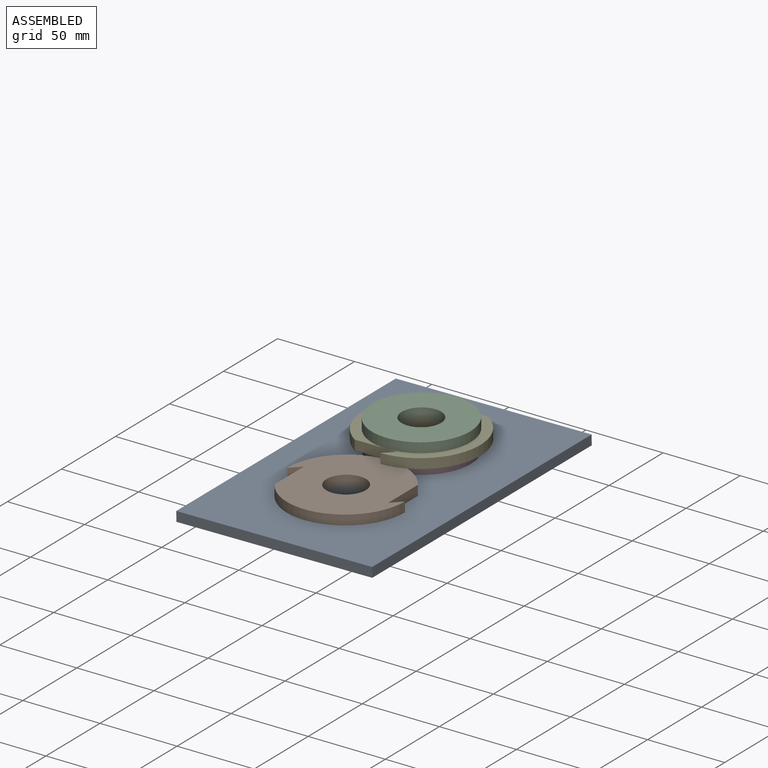
[diagram: assembled view]
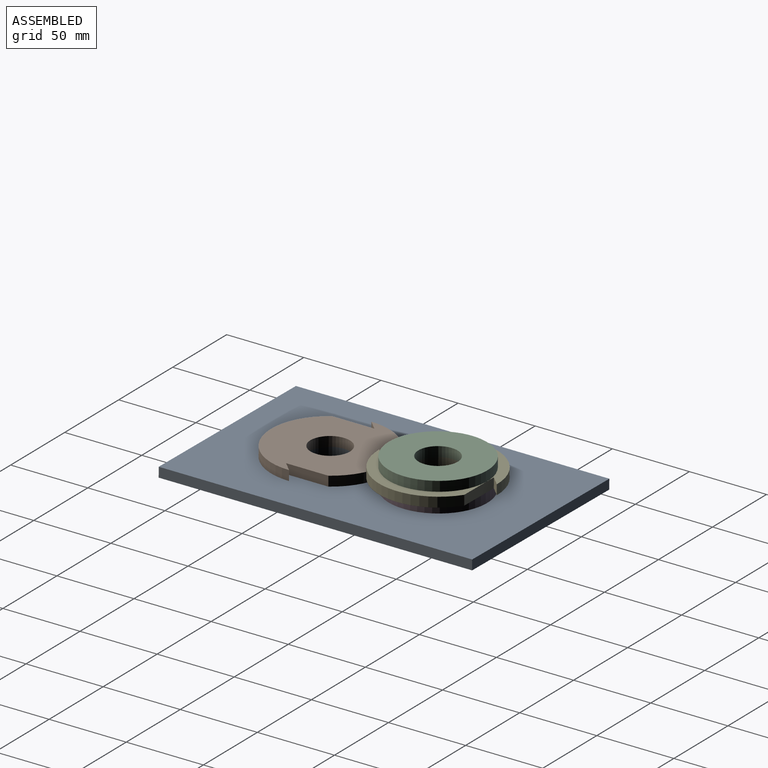
[diagram: assembled view, second angle]
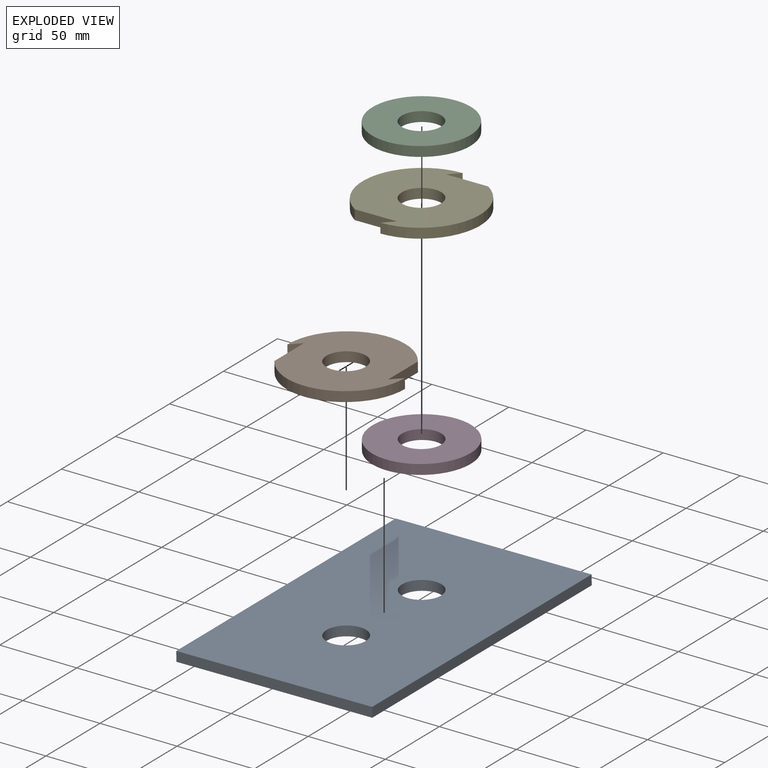
[diagram: exploded view]
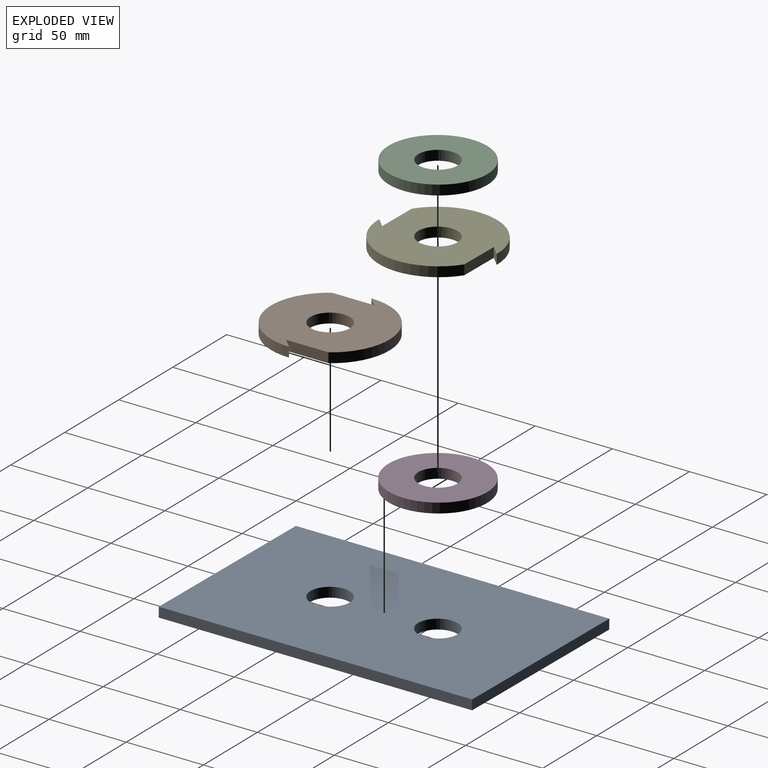
[diagram: exploded view, second angle]
ASSEMBLY  parts=5 mates=4
PART A: 8 faces, bbox 6.4x203.2x127 mm
  f0: plane 127x6.35mm, normal (0,1,0), area 806.5mm2, adj f1,f5,f6,f7
  f1: plane 203.2x6.35mm, normal (0,0,1), area 1290.3mm2, adj f0,f2,f6,f7
  f2: plane 127x6.35mm, normal (0,-1,0), area 806.5mm2, adj f1,f5,f6,f7
  f3: cylinder r=12.7mm len=25.4mm, axis (-1,0,0), area 506.7mm2, adj f6,f7
  f4: cylinder r=12.7mm len=25.4mm, axis (-1,0,0), area 506.7mm2, adj f6,f7
  f5: plane 203.2x6.35mm, normal (0,0,-1), area 1290.3mm2, adj f0,f2,f6,f7
  f6: plane 203.2x127mm, normal (1,0,0), area 24793mm2, adj f0,f1,f2,f3,f4,f5
  f7: plane 203.2x127mm, normal (-1,0,0), area 24793mm2, adj f0,f1,f2,f3,f4,f5
PART B: 9 faces, bbox 76.2x76.2x6.4 mm
  f0: plane 6.35x6.35mm, normal (-0.71,0.71,0), area 57mm2, adj f1,f5,f7,f8
  f1: cylinder r=38.1mm len=69.85mm, axis (0,0,1), area 618.4mm2, adj f0,f2,f7,f8
  f2: plane 27.41x6.35mm, normal (0,1,0), area 174.1mm2, adj f1,f3,f7,f8
  f3: plane 6.35x6.35mm, normal (0.71,-0.71,0), area 57mm2, adj f2,f4,f7,f8
  f4: cylinder r=38.1mm len=69.85mm, axis (0,0,1), area 618.4mm2, adj f3,f5,f7,f8
  f5: plane 27.41x6.35mm, normal (0,-1,0), area 174.1mm2, adj f0,f4,f7,f8
  f6: cylinder r=12.7mm len=25.4mm, axis (0,0,1), area 506.7mm2, adj f7,f8
  f7: plane 76.2x76.2mm, normal (0,0,-1), area 3831.8mm2, adj f0,f1,f2,f3,f4,f5,f6
  f8: plane 76.2x76.2mm, normal (0,0,1), area 3831.8mm2, adj f0,f1,f2,f3,f4,f5,f6
PART C: 4 faces, bbox 63.5x63.5x6.4 mm
  f0: cylinder r=12.7mm len=25.4mm, axis (0,0,-1), area 506.7mm2, adj f2,f3
  f1: cylinder r=31.75mm len=63.5mm, axis (0,0,-1), area 1266.8mm2, adj f2,f3
  f2: plane 63.5x63.5mm, normal (0,0,1), area 2660.2mm2, adj f0,f1
  f3: plane 63.5x63.5mm, normal (0,0,-1), area 2660.2mm2, adj f0,f1
PART D: same geometry as C
PART E: same geometry as B
PLACE A rot(axis=(0,1,0),89.5deg) t=(106.8,81.86,-17.87)mm
PLACE B rot(axis=(0.71,0.71,0),179.6deg) t=(106.8,46.94,-17.87)mm
PLACE C rot(axis=(1,0,0),180deg) t=(106.62,116.79,1.18)mm
PLACE D rot(axis=(1,0,0),180deg) t=(106.74,116.79,-11.52)mm
PLACE E rot(axis=(0,-1,0),0.5deg) t=(106.68,116.79,-5.17)mm
MATE fastened E.f1 <-> D.f0  axis (0.01,0,-1) through (106.74,116.79,-11.52)mm
MATE fastened E.f1 <-> C.f0  axis (-0.01,0,1) through (106.68,116.79,-5.17)mm
MATE fastened D.f0 <-> A.f4  axis (0.01,0,-1) through (106.8,116.79,-17.87)mm
MATE fastened B.f1 <-> A.f3  axis (0.01,0,-1) through (106.8,46.94,-17.87)mm
